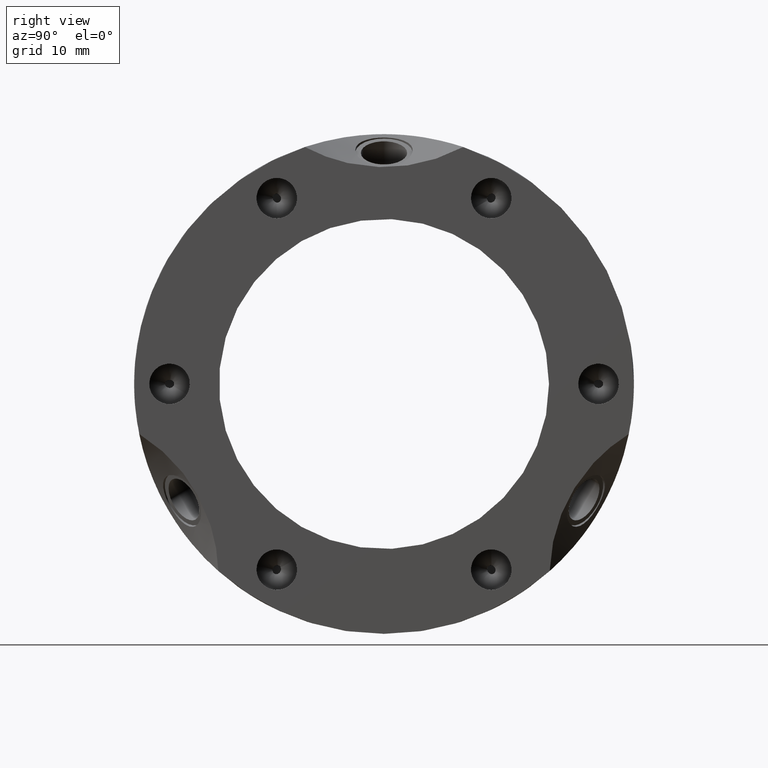
[diagram: clean part render]
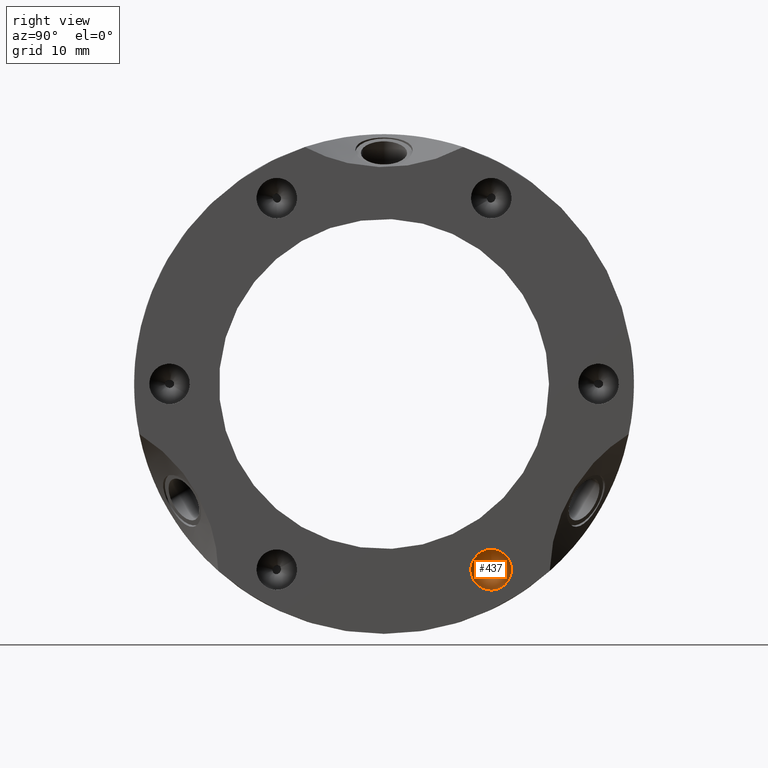
[diagram: same view with one face highlighted and labeled with its STEP entity id]
A machine part, right view. The second image highlights one B-rep face of the part: STEP entity #437.
In plain terms, the highlighted conical surface has half-angle 59 deg.
Its self-contained STEP definition (entity closure, byte-faithful):
#380=CARTESIAN_POINT('',(13.854074834545367,11.375000000000011,-19.702077936095979));
#381=DIRECTION('',(1.0,0.0,0.0));
#382=DIRECTION('',(0.0,0.0,1.0));
#383=AXIS2_PLACEMENT_3D('',#380,#381,#382);
#384=CONICAL_SURFACE('',#383,1.075,59.000000000000021);
#385=CARTESIAN_POINT('',(14.499999999999993,11.375000000000009,-17.55207793609598));
#386=VERTEX_POINT('',#385);
#387=CARTESIAN_POINT('',(14.499999999999993,11.375000000000011,-19.702077936095979));
#388=DIRECTION('',(1.0,0.0,0.0));
#389=DIRECTION('',(0.0,0.0,1.0));
#390=AXIS2_PLACEMENT_3D('',#387,#388,#389);
#391=CIRCLE('',#390,2.15);
#392=EDGE_CURVE('',#386,#386,#391,.T.);
#393=ORIENTED_EDGE('',*,*,#392,.T.);
#394=EDGE_LOOP('',(#393));
#395=FACE_OUTER_BOUND('',#394,.T.);
#396=CARTESIAN_POINT('',(13.463589024010997,11.74316686512968,-19.48951669740666));
#397=VERTEX_POINT('',#396);
#398=CARTESIAN_POINT('',(13.463589024010997,11.743166865129682,-19.48951669740666));
#399=CARTESIAN_POINT('',(13.463589024010997,11.77137896348345,-19.538381485143514));
#400=CARTESIAN_POINT('',(13.465244634592363,11.793767382888252,-19.595642868114652));
#401=CARTESIAN_POINT('',(13.471490959422532,11.817216684053005,-19.714042618231549));
#402=CARTESIAN_POINT('',(13.476009932907584,11.818280076507486,-19.775184261998554));
#403=CARTESIAN_POINT('',(13.485046909422129,11.800523068197569,-19.888124176907969));
#404=CARTESIAN_POINT('',(13.490211547923263,11.77963338661792,-19.947694555845437));
#405=CARTESIAN_POINT('',(13.497757789659548,11.713580067164763,-20.050457285168065));
#406=CARTESIAN_POINT('',(13.5,11.668314663600174,-20.093594379340875));
#407=CARTESIAN_POINT('',(13.5,11.567405854049326,-20.151854107698661));
#408=CARTESIAN_POINT('',(13.49775778965955,11.507415332867939,-20.169486550011744));
#409=CARTESIAN_POINT('',(13.490211547923266,11.385393538985742,-20.175309038001153));
#410=CARTESIAN_POINT('',(13.485046909422129,11.323359236723007,-20.163614843457363));
#411=CARTESIAN_POINT('',(13.476009932907587,11.216671897155241,-20.122522906294261));
#412=CARTESIAN_POINT('',(13.471490959422534,11.164253376651113,-20.091031159530985));
#413=CARTESIAN_POINT('',(13.465244634592366,11.073440835830532,-20.011523593962863));
#414=CARTESIAN_POINT('',(13.463589024010998,11.035045233224096,-19.963503962522154));
#415=CARTESIAN_POINT('',(13.463589024010998,10.97960558319345,-19.867479671915238));
#416=CARTESIAN_POINT('',(13.465128422104302,10.957689372321207,-19.812295553690056));
#417=CARTESIAN_POINT('',(13.470996349515055,10.933719172368633,-19.698062675845815));
#418=CARTESIAN_POINT('',(13.475262038974456,10.931667284052116,-19.639010256126468));
#419=CARTESIAN_POINT('',(13.4842315860352,10.946602160630722,-19.525595819691695));
#420=CARTESIAN_POINT('',(13.489636589041341,10.966944959113931,-19.463566958679259));
#421=CARTESIAN_POINT('',(13.497598202395535,11.033555949325851,-19.356530821052427));
#422=CARTESIAN_POINT('',(13.5,11.079927450871745,-19.311576408533931));
#423=CARTESIAN_POINT('',(13.5,11.184352031478785,-19.251286848810452));
#424=CARTESIAN_POINT('',(13.497598202395533,11.246469445504951,-19.233605156719324));
#425=CARTESIAN_POINT('',(13.489636589041339,11.372470954918715,-19.229436415837981));
#426=CARTESIAN_POINT('',(13.484231586035197,11.436360923564903,-19.242833466073666));
#427=CARTESIAN_POINT('',(13.475262038974449,11.542048144962616,-19.286606701771596));
#428=CARTESIAN_POINT('',(13.470996349515051,11.592163096436249,-19.317909899039112));
#429=CARTESIAN_POINT('',(13.4651284221043,11.679106570620469,-19.395785140053956));
#430=CARTESIAN_POINT('',(13.463589024010997,11.715939313452804,-19.442357194536601));
#431=CARTESIAN_POINT('',(13.463589024010997,11.743166865129682,-19.48951669740666));
#432=B_SPLINE_CURVE_WITH_KNOTS('',3,(#398,#399,#400,#401,#402,#403,#404,#405,#406,#407,#408,#409,#410,#411,#412,#413,#414,#415,#416,#417,#418,#419,#420,#421,#422,#423,#424,#425,#426,#427,#428,#429,#430,#431),.UNSPECIFIED.,.T.,.U.,(4,2,2,2,2,2,2,2,2,2,2,2,2,2,2,2,4),(0.0,0.016927259012259,0.033854518024519,0.051332436531855,0.068810355039191,0.086288273546528,0.103766192053864,0.120693451066124,0.137620710078383,0.153957241084511,0.170293772090639,0.188380640007684,0.206467507924729,0.224554375841774,0.242641243758819,0.258977774764947,0.275314305771075),.UNSPECIFIED.);
#433=EDGE_CURVE('',#397,#397,#432,.T.);
#434=ORIENTED_EDGE('',*,*,#433,.T.);
#435=EDGE_LOOP('',(#434));
#436=FACE_BOUND('',#435,.T.);
#437=ADVANCED_FACE('',(#395,#436),#384,.F.);